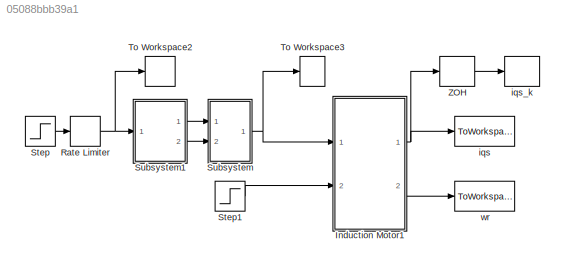
MODEL slx_05088bbb39a1
KIND model
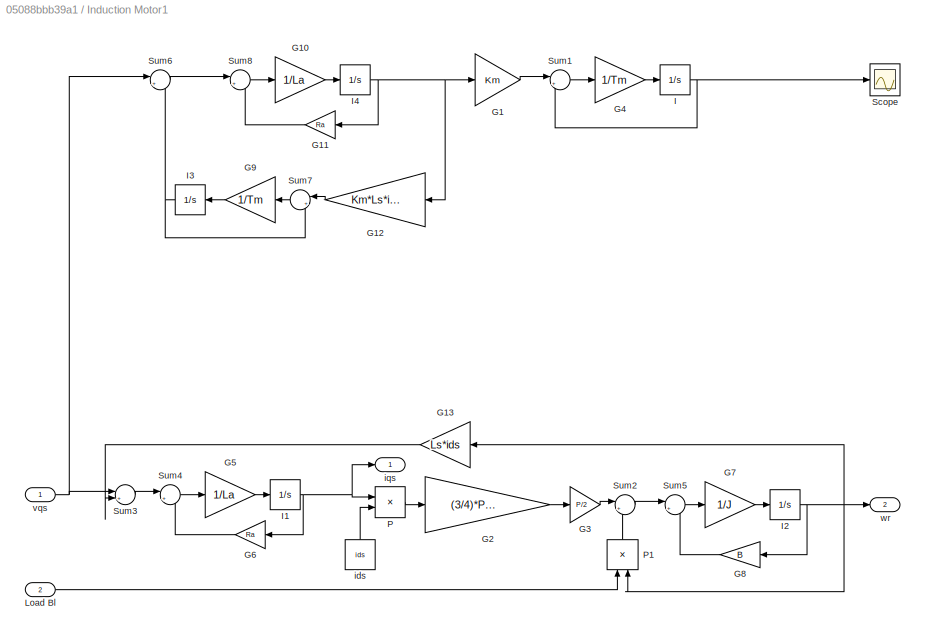
BLOCK [SubSystem] Induction Motor1
  FunctionWithSeparateData = off
  MaskHideContents = off
  MinAlgLoopOccurrences = off
  Opaque = off
  Ports = [2, 2]
  PropExecContextOutsideSubsystem = off
  RTWSystemCode = Auto
  RequestExecContextInheritance = off
BLOCK [Gain] Induction Motor1/G1
  Gain = Km
  OutDataTypeStr = Inherit: Inherit via internal rule
  ParamDataTypeStr = Inherit: Inherit via internal rule
  SaturateOnIntegerOverflow = off
BLOCK [Gain] Induction Motor1/G10
  Gain = 1/La
  OutDataTypeStr = Inherit: Inherit via internal rule
  ParamDataTypeStr = Inherit: Inherit via internal rule
  SaturateOnIntegerOverflow = off
BLOCK [Gain] Induction Motor1/G11
  Gain = Ra
  OutDataTypeStr = Inherit: Inherit via internal rule
  ParamDataTypeStr = Inherit: Inherit via internal rule
  SaturateOnIntegerOverflow = off
BLOCK [Gain] Induction Motor1/G12
  Gain = Km*Ls*ids
  OutDataTypeStr = Inherit: Inherit via internal rule
  ParamDataTypeStr = Inherit: Inherit via internal rule
  SaturateOnIntegerOverflow = off
BLOCK [Gain] Induction Motor1/G13
  Gain = Ls*ids
  OutDataTypeStr = Inherit: Inherit via internal rule
  ParamDataTypeStr = Inherit: Inherit via internal rule
  SaturateOnIntegerOverflow = off
BLOCK [Gain] Induction Motor1/G2
  Gain = (3/4)*P*((Lm*Lm)/Lr)
  OutDataTypeStr = Inherit: Inherit via internal rule
  ParamDataTypeStr = Inherit: Inherit via internal rule
  SaturateOnIntegerOverflow = off
BLOCK [Gain] Induction Motor1/G3
  Gain = P/2
  OutDataTypeStr = Inherit: Inherit via internal rule
  ParamDataTypeStr = Inherit: Inherit via internal rule
  SaturateOnIntegerOverflow = off
BLOCK [Gain] Induction Motor1/G4
  Gain = 1/Tm
  OutDataTypeStr = Inherit: Inherit via internal rule
  ParamDataTypeStr = Inherit: Inherit via internal rule
  SaturateOnIntegerOverflow = off
BLOCK [Gain] Induction Motor1/G5
  Gain = 1/La
  OutDataTypeStr = Inherit: Inherit via internal rule
  ParamDataTypeStr = Inherit: Inherit via internal rule
  SaturateOnIntegerOverflow = off
BLOCK [Gain] Induction Motor1/G6
  Gain = Ra
  OutDataTypeStr = Inherit: Inherit via internal rule
  ParamDataTypeStr = Inherit: Inherit via internal rule
  SaturateOnIntegerOverflow = off
BLOCK [Gain] Induction Motor1/G7
  Gain = 1/J
  OutDataTypeStr = Inherit: Inherit via internal rule
  ParamDataTypeStr = Inherit: Inherit via internal rule
  SaturateOnIntegerOverflow = off
BLOCK [Gain] Induction Motor1/G8
  Gain = B
  OutDataTypeStr = Inherit: Inherit via internal rule
  ParamDataTypeStr = Inherit: Inherit via internal rule
  SaturateOnIntegerOverflow = off
BLOCK [Gain] Induction Motor1/G9
  Gain = 1/Tm
  OutDataTypeStr = Inherit: Inherit via internal rule
  ParamDataTypeStr = Inherit: Inherit via internal rule
  SaturateOnIntegerOverflow = off
BLOCK [Integrator] Induction Motor1/I
  Ports = [1, 1]
BLOCK [Integrator] Induction Motor1/I1
  Ports = [1, 1]
BLOCK [Integrator] Induction Motor1/I2
  Ports = [1, 1]
BLOCK [Integrator] Induction Motor1/I3
  Ports = [1, 1]
BLOCK [Integrator] Induction Motor1/I4
  Ports = [1, 1]
BLOCK [Inport] Induction Motor1/Load Bl
  IconDisplay = Port number
  Port = 2
BLOCK [Product] Induction Motor1/P
  InputSameDT = off
  OutDataTypeStr = Inherit: Inherit via internal rule
  Ports = [2, 1]
  RndMeth = Floor
  SaturateOnIntegerOverflow = off
BLOCK [Product] Induction Motor1/P1
  InputSameDT = off
  OutDataTypeStr = Inherit: Inherit via internal rule
  Ports = [2, 1]
  RndMeth = Floor
  SaturateOnIntegerOverflow = off
BLOCK [Scope] Induction Motor1/Scope
  DataFormat = StructureWithTime
  Floating = off
  NumInputPorts = 1
  Ports = [1]
  SampleTime = 0
  ShowLegends = off
BLOCK [Sum] Induction Motor1/Sum1
  IconShape = round
  InputSameDT = off
  Inputs = |+-
  OutDataTypeStr = Inherit: Inherit via internal rule
  Ports = [2, 1]
  SaturateOnIntegerOverflow = off
BLOCK [Sum] Induction Motor1/Sum2
  IconShape = round
  InputSameDT = off
  Inputs = |+-
  OutDataTypeStr = Inherit: Inherit via internal rule
  Ports = [2, 1]
  SaturateOnIntegerOverflow = off
BLOCK [Sum] Induction Motor1/Sum3
  IconShape = round
  InputSameDT = off
  Inputs = |+-
  OutDataTypeStr = Inherit: Inherit via internal rule
  Ports = [2, 1]
  SaturateOnIntegerOverflow = off
BLOCK [Sum] Induction Motor1/Sum4
  IconShape = round
  InputSameDT = off
  Inputs = |+-
  OutDataTypeStr = Inherit: Inherit via internal rule
  Ports = [2, 1]
  SaturateOnIntegerOverflow = off
BLOCK [Sum] Induction Motor1/Sum5
  IconShape = round
  InputSameDT = off
  Inputs = |+-
  OutDataTypeStr = Inherit: Inherit via internal rule
  Ports = [2, 1]
  SaturateOnIntegerOverflow = off
BLOCK [Sum] Induction Motor1/Sum6
  IconShape = round
  InputSameDT = off
  Inputs = |+-
  OutDataTypeStr = Inherit: Inherit via internal rule
  Ports = [2, 1]
  SaturateOnIntegerOverflow = off
BLOCK [Sum] Induction Motor1/Sum7
  IconShape = round
  InputSameDT = off
  Inputs = |+-
  OutDataTypeStr = Inherit: Inherit via internal rule
  Ports = [2, 1]
  SaturateOnIntegerOverflow = off
BLOCK [Sum] Induction Motor1/Sum8
  IconShape = round
  InputSameDT = off
  Inputs = |+-
  OutDataTypeStr = Inherit: Inherit via internal rule
  Ports = [2, 1]
  SaturateOnIntegerOverflow = off
BLOCK [Constant] Induction Motor1/ids
  Value = ids
BLOCK [Outport] Induction Motor1/iqs
  IconDisplay = Port number
BLOCK [Inport] Induction Motor1/vqs
  IconDisplay = Port number
BLOCK [Outport] Induction Motor1/wr
  IconDisplay = Port number
  Port = 2
BLOCK [RateLimiter] Rate Limiter
  RisingSlewLimit = (200*sqrt(2)/sqrt(3))/0.1
BLOCK [Step] Step
  After = 200*sqrt(2)/sqrt(3)
  SampleTime = 0
  Time = 0.1
BLOCK [Step] Step1
  After = 0.025
  SampleTime = 0
  Time = 0.3
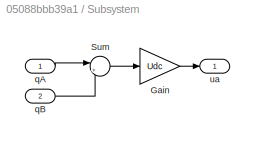
BLOCK [SubSystem] Subsystem
  FunctionWithSeparateData = off
  MaskHideContents = off
  MinAlgLoopOccurrences = off
  Opaque = off
  Ports = [2, 1]
  PropExecContextOutsideSubsystem = off
  RTWSystemCode = Auto
  RequestExecContextInheritance = off
BLOCK [Gain] Subsystem/Gain
  Gain = Udc
  OutDataTypeStr = Inherit: Inherit via internal rule
  ParamDataTypeStr = Inherit: Inherit via internal rule
  SaturateOnIntegerOverflow = off
BLOCK [Sum] Subsystem/Sum
  IconShape = round
  InputSameDT = off
  Inputs = |+-
  OutDataTypeStr = Inherit: Inherit via internal rule
  Ports = [2, 1]
  SaturateOnIntegerOverflow = off
BLOCK [Inport] Subsystem/qA
  IconDisplay = Port number
BLOCK [Inport] Subsystem/qB
  IconDisplay = Port number
  Port = 2
BLOCK [Outport] Subsystem/ua
  IconDisplay = Port number
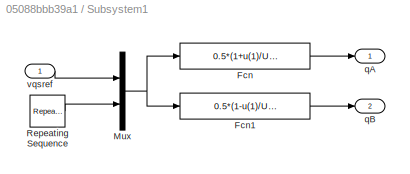
BLOCK [SubSystem] Subsystem1
  FunctionWithSeparateData = off
  MaskHideContents = off
  MinAlgLoopOccurrences = off
  Opaque = off
  Ports = [1, 2]
  PropExecContextOutsideSubsystem = off
  RTWSystemCode = Auto
  RequestExecContextInheritance = off
BLOCK [Fcn] Subsystem1/Fcn
  Expr = 0.5*(1+u(1)/Udc)>u(2)
BLOCK [Fcn] Subsystem1/Fcn1
  Expr = 0.5*(1-u(1)/Udc)>u(2)
BLOCK [Mux] Subsystem1/Mux
  DisplayOption = bar
  Inputs = 2
  Ports = [2, 1]
BLOCK [Reference] Subsystem1/Repeating Sequence  REF=simulink/Sources/Repeating
Sequence
  Ports = [0, 1]
  SourceBlock = simulink/Sources/Repeating\nSequence
  SourceType = Repeating table
  rep_seq_t = Tsw*[0 0.5 1]
  rep_seq_y = [1 0 1]
BLOCK [Outport] Subsystem1/qA
  IconDisplay = Port number
BLOCK [Outport] Subsystem1/qB
  IconDisplay = Port number
  Port = 2
BLOCK [Inport] Subsystem1/vqsref
  IconDisplay = Port number
BLOCK [ToWorkspace] To Workspace2
  MaxDataPoints = inf
  Ports = [1]
  SampleTime = -1
  SaveFormat = Timeseries
  VariableName = vqsref
BLOCK [ToWorkspace] To Workspace3
  MaxDataPoints = inf
  Ports = [1]
  SampleTime = -1
  SaveFormat = Timeseries
  VariableName = vqs
BLOCK [ZeroOrderHold] ZOH
  SampleTime = (20e-5)/2
BLOCK [ToWorkspace] iqs
  MaxDataPoints = inf
  Ports = [1]
  SampleTime = -1
  SaveFormat = Timeseries
  VariableName = iqs
BLOCK [ToWorkspace] iqs_k
  MaxDataPoints = inf
  Ports = [1]
  SampleTime = -1
  SaveFormat = Timeseries
  VariableName = iqs_k
BLOCK [ToWorkspace] wr
  MaxDataPoints = inf
  Ports = [1]
  SampleTime = -1
  SaveFormat = Timeseries
  VariableName = wr
LINE Induction Motor1/G10:1 -> Induction Motor1/I4:1
LINE Induction Motor1/G11:1 -> Induction Motor1/Sum8:2
LINE Induction Motor1/G12:1 -> Induction Motor1/Sum7:1
LINE Induction Motor1/G13:1 -> Induction Motor1/Sum3:2
LINE Induction Motor1/G1:1 -> Induction Motor1/Sum1:1
LINE Induction Motor1/G2:1 -> Induction Motor1/G3:1
LINE Induction Motor1/G3:1 -> Induction Motor1/Sum2:1
LINE Induction Motor1/G4:1 -> Induction Motor1/I:1
LINE Induction Motor1/G5:1 -> Induction Motor1/I1:1
LINE Induction Motor1/G6:1 -> Induction Motor1/Sum4:2
LINE Induction Motor1/G7:1 -> Induction Motor1/I2:1
LINE Induction Motor1/G8:1 -> Induction Motor1/Sum5:2
LINE Induction Motor1/G9:1 -> Induction Motor1/I3:1
NET Induction Motor1/I1:1 -> Induction Motor1/G6:1, Induction Motor1/P:1, Induction Motor1/iqs:1
NET Induction Motor1/I2:1 -> Induction Motor1/G13:1, Induction Motor1/G8:1, Induction Motor1/P1:2, Induction Motor1/wr:1
NET Induction Motor1/I3:1 -> Induction Motor1/Sum6:2, Induction Motor1/Sum7:2
NET Induction Motor1/I4:1 -> Induction Motor1/G11:1, Induction Motor1/G12:1, Induction Motor1/G1:1
NET Induction Motor1/I:1 -> Induction Motor1/Scope:1, Induction Motor1/Sum1:2
LINE Induction Motor1/Load Bl:1 -> Induction Motor1/P1:1
LINE Induction Motor1/P1:1 -> Induction Motor1/Sum2:2
LINE Induction Motor1/P:1 -> Induction Motor1/G2:1
LINE Induction Motor1/Sum1:1 -> Induction Motor1/G4:1
LINE Induction Motor1/Sum2:1 -> Induction Motor1/Sum5:1
LINE Induction Motor1/Sum3:1 -> Induction Motor1/Sum4:1
LINE Induction Motor1/Sum4:1 -> Induction Motor1/G5:1
LINE Induction Motor1/Sum5:1 -> Induction Motor1/G7:1
LINE Induction Motor1/Sum6:1 -> Induction Motor1/Sum8:1
LINE Induction Motor1/Sum7:1 -> Induction Motor1/G9:1
LINE Induction Motor1/Sum8:1 -> Induction Motor1/G10:1
LINE Induction Motor1/ids:1 -> Induction Motor1/P:2
NET Induction Motor1/vqs:1 -> Induction Motor1/Sum3:1, Induction Motor1/Sum6:1
NET Induction Motor1:1 -> ZOH:1, iqs:1
LINE Induction Motor1:2 -> wr:1
NET Rate Limiter:1 -> Subsystem1:1, To Workspace2:1
LINE Step1:1 -> Induction Motor1:2
LINE Step:1 -> Rate Limiter:1
LINE Subsystem/Gain:1 -> Subsystem/ua:1
LINE Subsystem/Sum:1 -> Subsystem/Gain:1
LINE Subsystem/qA:1 -> Subsystem/Sum:1
LINE Subsystem/qB:1 -> Subsystem/Sum:2
LINE Subsystem1/Fcn1:1 -> Subsystem1/qB:1
LINE Subsystem1/Fcn:1 -> Subsystem1/qA:1
NET Subsystem1/Mux:1 -> Subsystem1/Fcn1:1, Subsystem1/Fcn:1
LINE Subsystem1/Repeating Sequence:1 -> Subsystem1/Mux:2
LINE Subsystem1/vqsref:1 -> Subsystem1/Mux:1
LINE Subsystem1:1 -> Subsystem:1
LINE Subsystem1:2 -> Subsystem:2
NET Subsystem:1 -> Induction Motor1:1, To Workspace3:1
LINE ZOH:1 -> iqs_k:1
note: NET lines group one-source signal fan-out (src -> all destinations, sorted); 1:1 wires keep LINE
